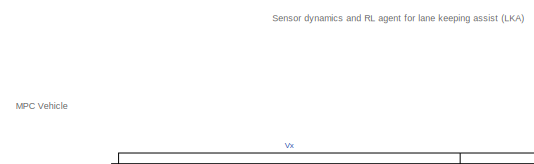
[diagram: root canvas - part 1/2, top left region]
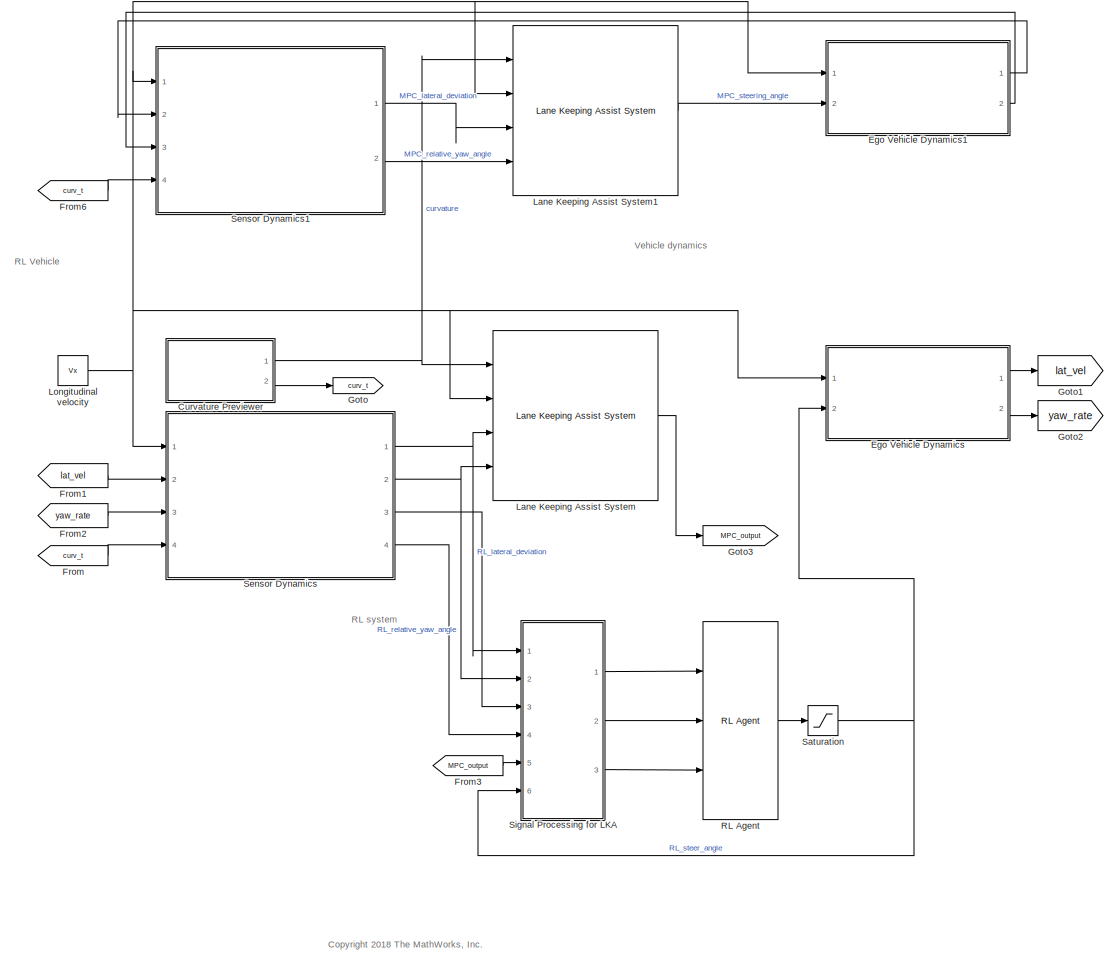
[diagram: root canvas - part 2/2, most of the canvas]
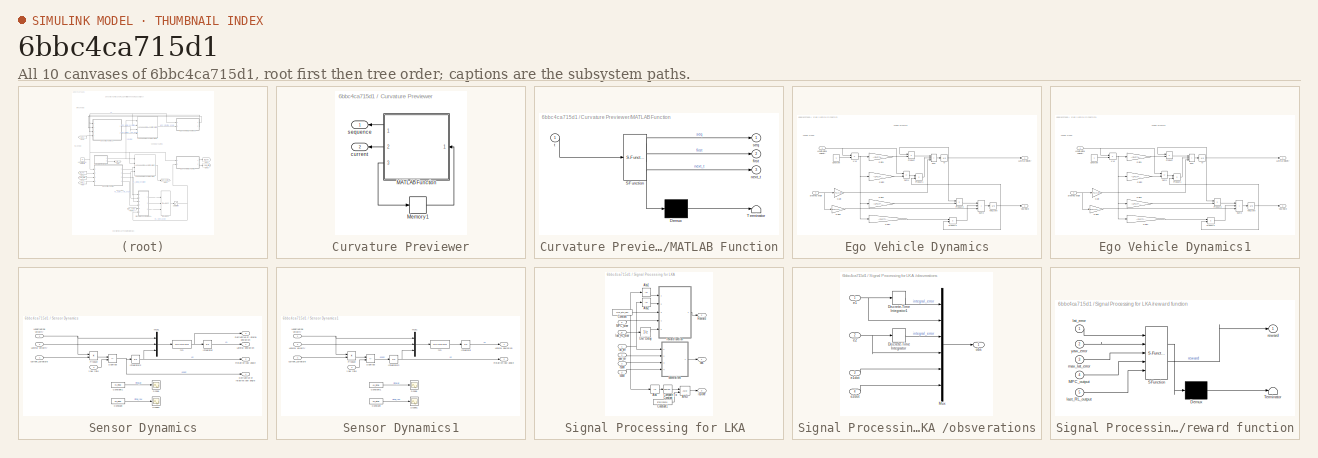
[diagram: thumbnail index - all 10 canvases of the model, root first then tree order]
MODEL slx_6bbc4ca715d1
KIND model
CONFIG AbsTol = auto
CONFIG EnableMultiTasking = off
CONFIG FixedStep = auto
CONFIG MaxStep = auto
CONFIG MinStep = auto
CONFIG RelTol = 1e-3
CONFIG SampleTimeConstraint = Unconstrained
CONFIG SolverName = FixedStepAuto
CONFIG StartTime = 0.0
CONFIG StopTime = T
BLOCK [SubSystem] Curvature Previewer
  Ports = [0, 2]
  RequestExecContextInheritance = off
BLOCK [SubSystem] Curvature Previewer/MATLAB Function
  ErrorFcn = Stateflow.Translate.translate
  PermitHierarchicalResolution = ExplicitOnly
  Ports = [1, 3]
  RequestExecContextInheritance = off
  SFBlockType = MATLAB Function
  TreatAsAtomicUnit = on
BLOCK [Demux] Curvature Previewer/MATLAB Function/ Demux 
  Outputs = 1
  Ports = [1, 1]
BLOCK [S-Function] Curvature Previewer/MATLAB Function/ SFunction 
  EnableBusSupport = on
  FunctionName = sf_sfun
  Parameters = data,steps
  PortCounts = [1 4]
  Ports = [1, 4]
  SFcnIsStateOwnerBlock = off
  SFunctionDeploymentMode = off
  Tag = Stateflow S-Function 2
BLOCK [Terminator] Curvature Previewer/MATLAB Function/ Terminator 
BLOCK [Outport] Curvature Previewer/MATLAB Function/first
  Port = 2
  VectorParamsAs1DForOutWhenUnconnected = off
BLOCK [Outport] Curvature Previewer/MATLAB Function/next_t
  Port = 3
  VectorParamsAs1DForOutWhenUnconnected = off
BLOCK [Outport] Curvature Previewer/MATLAB Function/seq
  VectorParamsAs1DForOutWhenUnconnected = off
BLOCK [Inport] Curvature Previewer/MATLAB Function/t
BLOCK [Memory] Curvature Previewer/Memory1
  InheritSampleTime = on
  LinearizeAsDelay = on
BLOCK [Outport] Curvature Previewer/current
  Port = 2
  VectorParamsAs1DForOutWhenUnconnected = off
BLOCK [Outport] Curvature Previewer/sequence
  VectorParamsAs1DForOutWhenUnconnected = off
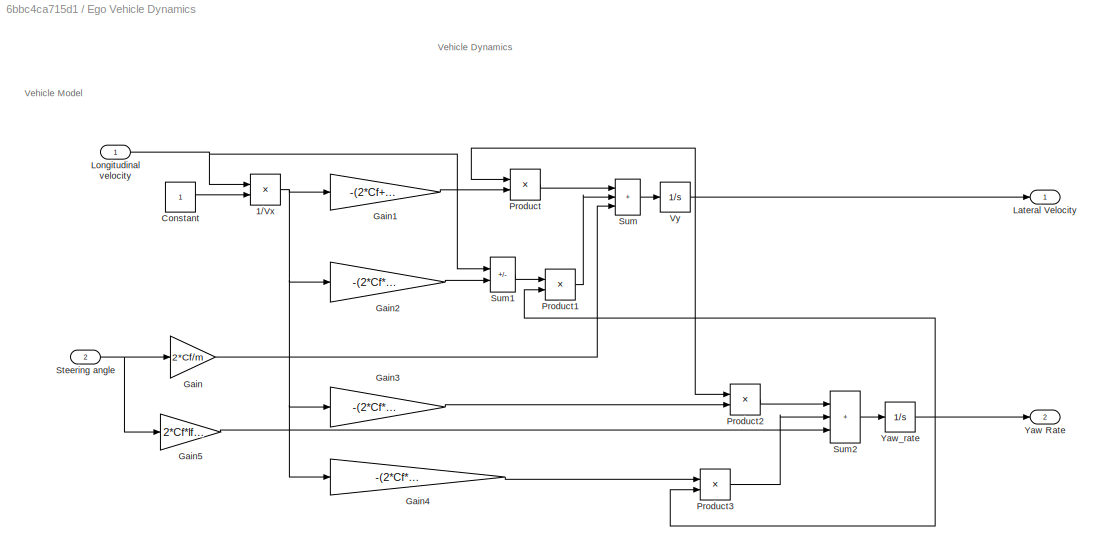
BLOCK [SubSystem] Ego Vehicle Dynamics
  Ports = [2, 2]
  RequestExecContextInheritance = off
BLOCK [Product] Ego Vehicle Dynamics/1//Vx
  Inputs = /*
  Ports = [2, 1]
BLOCK [Constant] Ego Vehicle Dynamics/Constant
BLOCK [Gain] Ego Vehicle Dynamics/Gain
  Gain = 2*Cf/m
BLOCK [Gain] Ego Vehicle Dynamics/Gain1
  Gain = -(2*Cf+2*Cr)/m
BLOCK [Gain] Ego Vehicle Dynamics/Gain2
  Gain = -(2*Cf*lf-2*Cr*lr)/m
BLOCK [Gain] Ego Vehicle Dynamics/Gain3
  Gain = -(2*Cf*lf-2*Cr*lr)/Iz
BLOCK [Gain] Ego Vehicle Dynamics/Gain4
  Gain = -(2*Cf*lf^2+2*Cr*lr^2)/Iz
BLOCK [Gain] Ego Vehicle Dynamics/Gain5
  Gain = 2*Cf*lf/Iz
BLOCK [Outport] Ego Vehicle Dynamics/Lateral Velocity
  VectorParamsAs1DForOutWhenUnconnected = off
BLOCK [Inport] Ego Vehicle Dynamics/Longitudinal velocity
BLOCK [Product] Ego Vehicle Dynamics/Product
  Ports = [2, 1]
BLOCK [Product] Ego Vehicle Dynamics/Product1
  Ports = [2, 1]
BLOCK [Product] Ego Vehicle Dynamics/Product2
  Ports = [2, 1]
BLOCK [Product] Ego Vehicle Dynamics/Product3
  Ports = [2, 1]
BLOCK [Inport] Ego Vehicle Dynamics/Steering angle
  Port = 2
BLOCK [Sum] Ego Vehicle Dynamics/Sum
  IconShape = rectangular
  Inputs = +++
  Ports = [3, 1]
BLOCK [Sum] Ego Vehicle Dynamics/Sum1
  IconShape = rectangular
  Inputs = -+
  Ports = [2, 1]
BLOCK [Sum] Ego Vehicle Dynamics/Sum2
  IconShape = rectangular
  Inputs = +++
  Ports = [3, 1]
BLOCK [Integrator] Ego Vehicle Dynamics/Vy
  Ports = [1, 1]
BLOCK [Outport] Ego Vehicle Dynamics/Yaw Rate
  Port = 2
  VectorParamsAs1DForOutWhenUnconnected = off
BLOCK [Integrator] Ego Vehicle Dynamics/Yaw_rate 
  Ports = [1, 1]
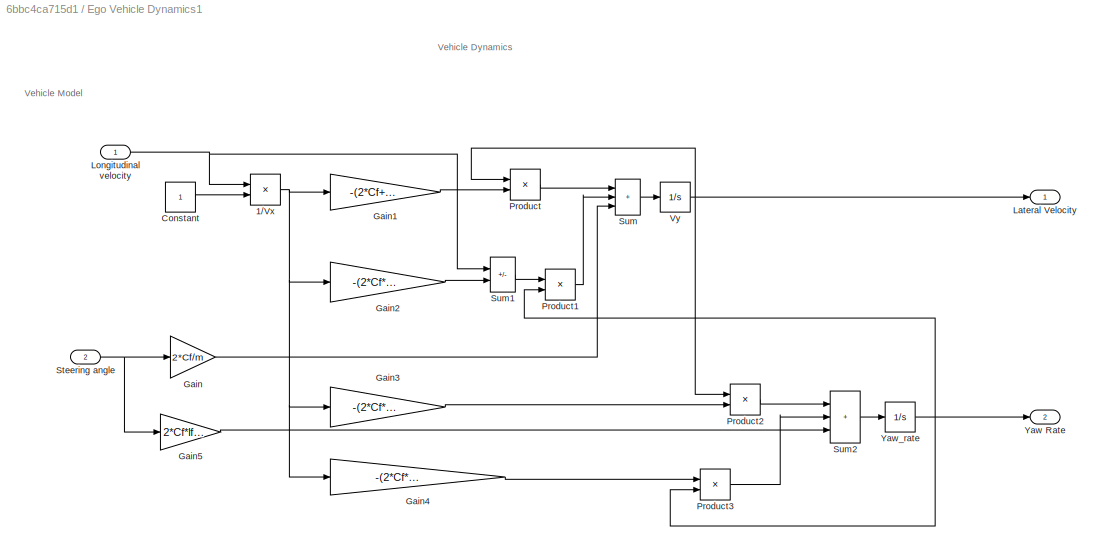
BLOCK [SubSystem] Ego Vehicle Dynamics1
  Ports = [2, 2]
  RequestExecContextInheritance = off
BLOCK [Product] Ego Vehicle Dynamics1/1//Vx
  Inputs = /*
  Ports = [2, 1]
BLOCK [Constant] Ego Vehicle Dynamics1/Constant
BLOCK [Gain] Ego Vehicle Dynamics1/Gain
  Gain = 2*Cf/m
BLOCK [Gain] Ego Vehicle Dynamics1/Gain1
  Gain = -(2*Cf+2*Cr)/m
BLOCK [Gain] Ego Vehicle Dynamics1/Gain2
  Gain = -(2*Cf*lf-2*Cr*lr)/m
BLOCK [Gain] Ego Vehicle Dynamics1/Gain3
  Gain = -(2*Cf*lf-2*Cr*lr)/Iz
BLOCK [Gain] Ego Vehicle Dynamics1/Gain4
  Gain = -(2*Cf*lf^2+2*Cr*lr^2)/Iz
BLOCK [Gain] Ego Vehicle Dynamics1/Gain5
  Gain = 2*Cf*lf/Iz
BLOCK [Outport] Ego Vehicle Dynamics1/Lateral Velocity
  VectorParamsAs1DForOutWhenUnconnected = off
BLOCK [Inport] Ego Vehicle Dynamics1/Longitudinal velocity
BLOCK [Product] Ego Vehicle Dynamics1/Product
  Ports = [2, 1]
BLOCK [Product] Ego Vehicle Dynamics1/Product1
  Ports = [2, 1]
BLOCK [Product] Ego Vehicle Dynamics1/Product2
  Ports = [2, 1]
BLOCK [Product] Ego Vehicle Dynamics1/Product3
  Ports = [2, 1]
BLOCK [Inport] Ego Vehicle Dynamics1/Steering angle
  Port = 2
BLOCK [Sum] Ego Vehicle Dynamics1/Sum
  IconShape = rectangular
  Inputs = +++
  Ports = [3, 1]
BLOCK [Sum] Ego Vehicle Dynamics1/Sum1
  IconShape = rectangular
  Inputs = -+
  Ports = [2, 1]
BLOCK [Sum] Ego Vehicle Dynamics1/Sum2
  IconShape = rectangular
  Inputs = +++
  Ports = [3, 1]
BLOCK [Integrator] Ego Vehicle Dynamics1/Vy
  Ports = [1, 1]
BLOCK [Outport] Ego Vehicle Dynamics1/Yaw Rate
  Port = 2
  VectorParamsAs1DForOutWhenUnconnected = off
BLOCK [Integrator] Ego Vehicle Dynamics1/Yaw_rate 
  Ports = [1, 1]
BLOCK [From] From
  GotoTag = curv_t
BLOCK [From] From1
  GotoTag = lat_vel
BLOCK [From] From2
  GotoTag = yaw_rate
BLOCK [From] From3
  GotoTag = MPC_output
BLOCK [From] From6
  GotoTag = curv_t
BLOCK [Goto] Goto
  GotoTag = curv_t
BLOCK [Goto] Goto1
  GotoTag = lat_vel
BLOCK [Goto] Goto2
  GotoTag = yaw_rate
BLOCK [Goto] Goto3
  GotoTag = MPC_output
BLOCK [Reference] Lane Keeping Assist System  REF=mpcadaslib/Lane Keeping Assist System
  Ports = [4, 1]
  SourceBlock = mpcadaslib/Lane Keeping Assist System
  SourceProductBaseCode = MP
  SourceType = Lane Keeping Assist (LKA) System
BLOCK [Reference] Lane Keeping Assist System1  REF=mpcadaslib/Lane Keeping Assist System
  Ports = [4, 1]
  SourceBlock = mpcadaslib/Lane Keeping Assist System
  SourceProductBaseCode = MP
  SourceType = Lane Keeping Assist (LKA) System
BLOCK [Constant] Longitudinal velocity
  SampleTime = Ts
  Value = Vx
BLOCK [Reference] RL Agent  REF=rllib/RL Agent
  Ports = [3, 1]
  SourceBlock = rllib/RL Agent
  SourceProductBaseCode = RL
  SourceType = RL Agent
BLOCK [Saturate] Saturation
  LowerLimit = u_min
  UpperLimit = u_max
BLOCK [SubSystem] Sensor Dynamics
  Ports = [4, 4]
  RequestExecContextInheritance = off
BLOCK [Constant] Sensor Dynamics/Constant
  Commented = on
  Value = e2_initial
BLOCK [Constant] Sensor Dynamics/Constant1
  Commented = on
  Value = e1_initial
BLOCK [Outport] Sensor Dynamics/Derivative of lateral deviation
  Port = 3
  VectorParamsAs1DForOutWhenUnconnected = off
BLOCK [Outport] Sensor Dynamics/Derivative of relative yaw angle
  Port = 4
  VectorParamsAs1DForOutWhenUnconnected = off
BLOCK [Integrator] Sensor Dynamics/Integrator
  InitialCondition = e1_initial
  Ports = [1, 1]
BLOCK [Integrator] Sensor Dynamics/Integrator2
  InitialCondition = e2_initial
  Ports = [1, 1]
BLOCK [Outport] Sensor Dynamics/Lateral deviation
  VectorParamsAs1DForOutWhenUnconnected = off
BLOCK [Inport] Sensor Dynamics/Lateral velocity
  Port = 2
BLOCK [Inport] Sensor Dynamics/Longitudinal velocity
BLOCK [Mux] Sensor Dynamics/Mux1
  DisplayOption = bar
  Inputs = [1 1 1]
  Ports = [3, 1]
BLOCK [Product] Sensor Dynamics/Product
  Ports = [2, 1]
BLOCK [Outport] Sensor Dynamics/Relative yaw angle
  Port = 2
  VectorParamsAs1DForOutWhenUnconnected = off
BLOCK [Scope] Sensor Dynamics/Scope
  Commented = on
  Floating = off
  NumInputPorts = 1
  Ports = [1]
  ScopeSpecificationString = Simulink.scopes.TimeScopeBlockCfg('CurrentConfiguration', extmgr.ConfigurationSet(extmgr.Configuration('Core','General UI',true),extmgr.Configuration('Core','Source UI',true),extmgr.Configuration('Sources','WiredSimulink',true),extmgr.Configuration('Visuals','Time Domain',true),extmgr.Configuration('Tools','Plot Navigation',true),extmgr.Configuration('Tools','Measurements',true)),'Version','2021a'...<+1ch>
BLOCK [Scope] Sensor Dynamics/Scope1
  Commented = on
  Floating = off
  NumInputPorts = 1
  Ports = [1]
  ScopeSpecificationString = Simulink.scopes.TimeScopeBlockCfg('CurrentConfiguration', extmgr.ConfigurationSet(extmgr.Configuration('Core','General UI',true),extmgr.Configuration('Core','Source UI',true),extmgr.Configuration('Sources','WiredSimulink',true,'DataLoggingVariableName','ScopeData1'),extmgr.Configuration('Visuals','Time Domain',true),extmgr.Configuration('Tools','Plot Navigation',true),extmgr.Configuration('Tools',...<+40ch>
BLOCK [Sum] Sensor Dynamics/Subtract
  IconShape = rectangular
  Inputs = -+
  Ports = [2, 1]
BLOCK [Inport] Sensor Dynamics/Yaw rate
  Port = 3
BLOCK [Inport] Sensor Dynamics/current_curvature
  Port = 4
BLOCK [Fcn] Sensor Dynamics/fcn
  Expr = u(1)*u(3)+u(2)
BLOCK [SubSystem] Sensor Dynamics1
  Ports = [4, 2]
  RequestExecContextInheritance = off
BLOCK [Constant] Sensor Dynamics1/Constant
  Commented = on
  Value = e2_initial
BLOCK [Constant] Sensor Dynamics1/Constant1
  Commented = on
  Value = e1_initial
BLOCK [Integrator] Sensor Dynamics1/Integrator
  InitialCondition = e1_initial
  Ports = [1, 1]
BLOCK [Integrator] Sensor Dynamics1/Integrator2
  InitialCondition = e2_initial
  Ports = [1, 1]
BLOCK [Outport] Sensor Dynamics1/Lateral deviation
  VectorParamsAs1DForOutWhenUnconnected = off
BLOCK [Inport] Sensor Dynamics1/Lateral velocity
  Port = 2
BLOCK [Inport] Sensor Dynamics1/Longitudinal velocity
BLOCK [Mux] Sensor Dynamics1/Mux1
  DisplayOption = bar
  Inputs = [1 1 1]
  Ports = [3, 1]
BLOCK [Product] Sensor Dynamics1/Product
  Ports = [2, 1]
BLOCK [Outport] Sensor Dynamics1/Relative yaw angle
  Port = 2
  VectorParamsAs1DForOutWhenUnconnected = off
BLOCK [Scope] Sensor Dynamics1/Scope
  Commented = on
  Floating = off
  NumInputPorts = 1
  Ports = [1]
  ScopeSpecificationString = Simulink.scopes.TimeScopeBlockCfg('CurrentConfiguration', extmgr.ConfigurationSet(extmgr.Configuration('Core','General UI',true),extmgr.Configuration('Core','Source UI',true),extmgr.Configuration('Sources','WiredSimulink',true),extmgr.Configuration('Visuals','Time Domain',true),extmgr.Configuration('Tools','Plot Navigation',true),extmgr.Configuration('Tools','Measurements',true)),'Version','2021a'...<+1ch>
BLOCK [Scope] Sensor Dynamics1/Scope1
  Commented = on
  Floating = off
  NumInputPorts = 1
  Ports = [1]
  ScopeSpecificationString = Simulink.scopes.TimeScopeBlockCfg('CurrentConfiguration', extmgr.ConfigurationSet(extmgr.Configuration('Core','General UI',true),extmgr.Configuration('Core','Source UI',true),extmgr.Configuration('Sources','WiredSimulink',true,'DataLoggingVariableName','ScopeData1'),extmgr.Configuration('Visuals','Time Domain',true),extmgr.Configuration('Tools','Plot Navigation',true),extmgr.Configuration('Tools',...<+40ch>
BLOCK [Sum] Sensor Dynamics1/Subtract
  IconShape = rectangular
  Inputs = -+
  Ports = [2, 1]
BLOCK [Inport] Sensor Dynamics1/Yaw rate
  Port = 3
BLOCK [Inport] Sensor Dynamics1/current_curvature
  Port = 4
BLOCK [Fcn] Sensor Dynamics1/fcn
  Expr = u(1)*u(3)+u(2)
BLOCK [SubSystem] Signal Processing for LKA 
  Ports = [6, 3]
  RequestExecContextInheritance = off
BLOCK [Logic] Signal Processing for LKA /AND
  AllPortsSameDT = off
  IconShape = distinctive
  OutDataTypeStr = boolean
  Ports = [2, 1]
BLOCK [Abs] Signal Processing for LKA /Abs
  SaturateOnIntegerOverflow = off
BLOCK [Abs] Signal Processing for LKA /Abs1
  SaturateOnIntegerOverflow = off
BLOCK [Abs] Signal Processing for LKA /Abs2
  SaturateOnIntegerOverflow = off
BLOCK [Reference] Signal Processing for LKA /Compare To Constant  REF=simulink/Logic and Bit
Operations/Compare
To Constant
  Ports = [1, 1]
  SourceBlock = simulink/Logic and Bit\nOperations/Compare\nTo Constant
  SourceProductBaseCode = SL
  SourceType = Compare To Constant
BLOCK [Constant] Signal Processing for LKA /Constant
  Value = max_late_dev
BLOCK [Constant] Signal Processing for LKA /Constant1
  Value = isTerminate
BLOCK [Inport] Signal Processing for LKA /MPC_steer
  Port = 5
BLOCK [Outport] Signal Processing for LKA /Reward
  Port = 2
  VectorParamsAs1DForOutWhenUnconnected = off
BLOCK [UnitDelay] Signal Processing for LKA /Unit Delay
  HasFrameUpgradeWarning = on
  SampleTime = -1
BLOCK [Inport] Signal Processing for LKA /e1dot 
  Port = 3
BLOCK [Inport] Signal Processing for LKA /e2dot
  Port = 4
BLOCK [Outport] Signal Processing for LKA /isDone
  Port = 3
  VectorParamsAs1DForOutWhenUnconnected = off
BLOCK [Inport] Signal Processing for LKA /last_RL_steer
  Port = 6
BLOCK [Inport] Signal Processing for LKA /lat_err
BLOCK [Outport] Signal Processing for LKA /obs
  VectorParamsAs1DForOutWhenUnconnected = off
BLOCK [SubSystem] Signal Processing for LKA /obsverations
  Ports = [4, 1]
  RequestExecContextInheritance = off
BLOCK [DiscreteIntegrator] Signal Processing for LKA /obsverations/Discrete-Time Integrator
  ICPrevOutput = DiscIntNeverNeededParam
  ICPrevScaledInput = DiscIntNeverNeededParam
  InitialConditionSetting = Auto
  Ports = [1, 1]
  SampleTime = -1
BLOCK [DiscreteIntegrator] Signal Processing for LKA /obsverations/Discrete-Time Integrator1
  ICPrevOutput = DiscIntNeverNeededParam
  ICPrevScaledInput = DiscIntNeverNeededParam
  InitialConditionSetting = Auto
  Ports = [1, 1]
  SampleTime = -1
BLOCK [Mux] Signal Processing for LKA /obsverations/Mux
  DisplayOption = bar
  Inputs = 6
  Ports = [6, 1]
BLOCK [Inport] Signal Processing for LKA /obsverations/e1
BLOCK [Inport] Signal Processing for LKA /obsverations/e1dot
  Port = 3
BLOCK [Inport] Signal Processing for LKA /obsverations/e2
  Port = 2
BLOCK [Inport] Signal Processing for LKA /obsverations/e2dot
  Port = 4
BLOCK [Outport] Signal Processing for LKA /obsverations/obs
  VectorParamsAs1DForOutWhenUnconnected = off
BLOCK [SubSystem] Signal Processing for LKA /reward function
  ErrorFcn = Stateflow.Translate.translate
  PermitHierarchicalResolution = ExplicitOnly
  Ports = [5, 1]
  RequestExecContextInheritance = off
  SFBlockType = MATLAB Function
  TreatAsAtomicUnit = on
BLOCK [Demux] Signal Processing for LKA /reward function/ Demux 
  Outputs = 1
  Ports = [1, 1]
BLOCK [S-Function] Signal Processing for LKA /reward function/ SFunction 
  EnableBusSupport = on
  FunctionName = sf_sfun
  PortCounts = [5 2]
  Ports = [5, 2]
  SFcnIsStateOwnerBlock = off
  SFunctionDeploymentMode = off
  Tag = Stateflow S-Function 1
BLOCK [Terminator] Signal Processing for LKA /reward function/ Terminator 
BLOCK [Inport] Signal Processing for LKA /reward function/MPC_output
  Port = 4
BLOCK [Inport] Signal Processing for LKA /reward function/last_RL_output
  Port = 5
BLOCK [Inport] Signal Processing for LKA /reward function/lat_error
BLOCK [Inport] Signal Processing for LKA /reward function/max_lat_error
  Port = 3
BLOCK [Outport] Signal Processing for LKA /reward function/reward
BLOCK [Inport] Signal Processing for LKA /reward function/yaw_error
  Port = 2
BLOCK [Inport] Signal Processing for LKA /yaw_err
  Port = 2
ANNOTATION (root): Sensor dynamics and RL agent for lane keeping assist (LKA)
ANNOTATION (root): <copyright redacted>
ANNOTATION (root): MPC Vehicle
ANNOTATION (root): RL Vehicle
ANNOTATION (root): RL system
ANNOTATION (root): Vehicle dynamics
ANNOTATION Ego Vehicle Dynamics: Vehicle Dynamics
ANNOTATION Ego Vehicle Dynamics: Vehicle Model
ANNOTATION Ego Vehicle Dynamics1: Vehicle Dynamics
ANNOTATION Ego Vehicle Dynamics1: Vehicle Model
LINE Curvature Previewer/MATLAB Function:1 -> Curvature Previewer/sequence:1
LINE Curvature Previewer/MATLAB Function:2 -> Curvature Previewer/current:1
LINE Curvature Previewer/MATLAB Function:3 -> Curvature Previewer/Memory1:1
LINE Curvature Previewer/Memory1:1 -> Curvature Previewer/MATLAB Function:1
NET Curvature Previewer:1 -> Lane Keeping Assist System1:1, Lane Keeping Assist System:1
LINE Curvature Previewer:2 -> Goto:1
NET Ego Vehicle Dynamics/1//Vx:1 -> Ego Vehicle Dynamics/Gain1:1, Ego Vehicle Dynamics/Gain2:1, Ego Vehicle Dynamics/Gain3:1, Ego Vehicle Dynamics/Gain4:1
LINE Ego Vehicle Dynamics/Constant:1 -> Ego Vehicle Dynamics/1//Vx:2
LINE Ego Vehicle Dynamics/Gain1:1 -> Ego Vehicle Dynamics/Product:2
LINE Ego Vehicle Dynamics/Gain2:1 -> Ego Vehicle Dynamics/Sum1:2
LINE Ego Vehicle Dynamics/Gain3:1 -> Ego Vehicle Dynamics/Product2:2
LINE Ego Vehicle Dynamics/Gain4:1 -> Ego Vehicle Dynamics/Product3:1
LINE Ego Vehicle Dynamics/Gain5:1 -> Ego Vehicle Dynamics/Sum2:3
LINE Ego Vehicle Dynamics/Gain:1 -> Ego Vehicle Dynamics/Sum:3
NET Ego Vehicle Dynamics/Longitudinal velocity:1 -> Ego Vehicle Dynamics/1//Vx:1, Ego Vehicle Dynamics/Sum1:1
LINE Ego Vehicle Dynamics/Product1:1 -> Ego Vehicle Dynamics/Sum:2
LINE Ego Vehicle Dynamics/Product2:1 -> Ego Vehicle Dynamics/Sum2:1
LINE Ego Vehicle Dynamics/Product3:1 -> Ego Vehicle Dynamics/Sum2:2
LINE Ego Vehicle Dynamics/Product:1 -> Ego Vehicle Dynamics/Sum:1
NET Ego Vehicle Dynamics/Steering angle:1 -> Ego Vehicle Dynamics/Gain5:1, Ego Vehicle Dynamics/Gain:1
LINE Ego Vehicle Dynamics/Sum1:1 -> Ego Vehicle Dynamics/Product1:1
LINE Ego Vehicle Dynamics/Sum2:1 -> Ego Vehicle Dynamics/Yaw_rate :1
LINE Ego Vehicle Dynamics/Sum:1 -> Ego Vehicle Dynamics/Vy:1
NET Ego Vehicle Dynamics/Vy:1 -> Ego Vehicle Dynamics/Lateral Velocity:1, Ego Vehicle Dynamics/Product2:1, Ego Vehicle Dynamics/Product:1
NET Ego Vehicle Dynamics/Yaw_rate :1 -> Ego Vehicle Dynamics/Product1:2, Ego Vehicle Dynamics/Product3:2, Ego Vehicle Dynamics/Yaw Rate:1
NET Ego Vehicle Dynamics1/1//Vx:1 -> Ego Vehicle Dynamics1/Gain1:1, Ego Vehicle Dynamics1/Gain2:1, Ego Vehicle Dynamics1/Gain3:1, Ego Vehicle Dynamics1/Gain4:1
LINE Ego Vehicle Dynamics1/Constant:1 -> Ego Vehicle Dynamics1/1//Vx:2
LINE Ego Vehicle Dynamics1/Gain1:1 -> Ego Vehicle Dynamics1/Product:2
LINE Ego Vehicle Dynamics1/Gain2:1 -> Ego Vehicle Dynamics1/Sum1:2
LINE Ego Vehicle Dynamics1/Gain3:1 -> Ego Vehicle Dynamics1/Product2:2
LINE Ego Vehicle Dynamics1/Gain4:1 -> Ego Vehicle Dynamics1/Product3:1
LINE Ego Vehicle Dynamics1/Gain5:1 -> Ego Vehicle Dynamics1/Sum2:3
LINE Ego Vehicle Dynamics1/Gain:1 -> Ego Vehicle Dynamics1/Sum:3
NET Ego Vehicle Dynamics1/Longitudinal velocity:1 -> Ego Vehicle Dynamics1/1//Vx:1, Ego Vehicle Dynamics1/Sum1:1
LINE Ego Vehicle Dynamics1/Product1:1 -> Ego Vehicle Dynamics1/Sum:2
LINE Ego Vehicle Dynamics1/Product2:1 -> Ego Vehicle Dynamics1/Sum2:1
LINE Ego Vehicle Dynamics1/Product3:1 -> Ego Vehicle Dynamics1/Sum2:2
LINE Ego Vehicle Dynamics1/Product:1 -> Ego Vehicle Dynamics1/Sum:1
NET Ego Vehicle Dynamics1/Steering angle:1 -> Ego Vehicle Dynamics1/Gain5:1, Ego Vehicle Dynamics1/Gain:1
LINE Ego Vehicle Dynamics1/Sum1:1 -> Ego Vehicle Dynamics1/Product1:1
LINE Ego Vehicle Dynamics1/Sum2:1 -> Ego Vehicle Dynamics1/Yaw_rate :1
LINE Ego Vehicle Dynamics1/Sum:1 -> Ego Vehicle Dynamics1/Vy:1
NET Ego Vehicle Dynamics1/Vy:1 -> Ego Vehicle Dynamics1/Lateral Velocity:1, Ego Vehicle Dynamics1/Product2:1, Ego Vehicle Dynamics1/Product:1
NET Ego Vehicle Dynamics1/Yaw_rate :1 -> Ego Vehicle Dynamics1/Product1:2, Ego Vehicle Dynamics1/Product3:2, Ego Vehicle Dynamics1/Yaw Rate:1
LINE Ego Vehicle Dynamics1:1 -> Sensor Dynamics1:2
LINE Ego Vehicle Dynamics1:2 -> Sensor Dynamics1:3
LINE Ego Vehicle Dynamics:1 -> Goto1:1
LINE Ego Vehicle Dynamics:2 -> Goto2:1
LINE From1:1 -> Sensor Dynamics:2
LINE From2:1 -> Sensor Dynamics:3
LINE From3:1 -> Signal Processing for LKA :5
LINE From6:1 -> Sensor Dynamics1:4
LINE From:1 -> Sensor Dynamics:4
LINE Lane Keeping Assist System1:1 -> Ego Vehicle Dynamics1:2
LINE Lane Keeping Assist System:1 -> Goto3:1
NET Longitudinal velocity:1 -> Ego Vehicle Dynamics1:1, Ego Vehicle Dynamics:1, Lane Keeping Assist System1:2, Lane Keeping Assist System:2, Sensor Dynamics1:1, Sensor Dynamics:1
LINE RL Agent:1 -> Saturation:1
NET Saturation:1 -> Ego Vehicle Dynamics:2, Signal Processing for LKA :6
LINE Sensor Dynamics/Constant1:1 -> Sensor Dynamics/Scope:1
LINE Sensor Dynamics/Constant:1 -> Sensor Dynamics/Scope1:1
NET Sensor Dynamics/Integrator2:1 -> Sensor Dynamics/Mux1:3, Sensor Dynamics/Relative yaw angle:1
LINE Sensor Dynamics/Integrator:1 -> Sensor Dynamics/Lateral deviation:1
LINE Sensor Dynamics/Lateral velocity:1 -> Sensor Dynamics/Mux1:2
NET Sensor Dynamics/Longitudinal velocity:1 -> Sensor Dynamics/Mux1:1, Sensor Dynamics/Product:1
LINE Sensor Dynamics/Mux1:1 -> Sensor Dynamics/fcn:1
LINE Sensor Dynamics/Product:1 -> Sensor Dynamics/Subtract:1
NET Sensor Dynamics/Subtract:1 -> Sensor Dynamics/Derivative of relative yaw angle:1, Sensor Dynamics/Integrator2:1
LINE Sensor Dynamics/Yaw rate:1 -> Sensor Dynamics/Subtract:2
LINE Sensor Dynamics/current_curvature:1 -> Sensor Dynamics/Product:2
NET Sensor Dynamics/fcn:1 -> Sensor Dynamics/Derivative of lateral deviation:1, Sensor Dynamics/Integrator:1
LINE Sensor Dynamics1/Constant1:1 -> Sensor Dynamics1/Scope:1
LINE Sensor Dynamics1/Constant:1 -> Sensor Dynamics1/Scope1:1
NET Sensor Dynamics1/Integrator2:1 -> Sensor Dynamics1/Mux1:3, Sensor Dynamics1/Relative yaw angle:1
LINE Sensor Dynamics1/Integrator:1 -> Sensor Dynamics1/Lateral deviation:1
LINE Sensor Dynamics1/Lateral velocity:1 -> Sensor Dynamics1/Mux1:2
NET Sensor Dynamics1/Longitudinal velocity:1 -> Sensor Dynamics1/Mux1:1, Sensor Dynamics1/Product:1
LINE Sensor Dynamics1/Mux1:1 -> Sensor Dynamics1/fcn:1
LINE Sensor Dynamics1/Product:1 -> Sensor Dynamics1/Subtract:1
LINE Sensor Dynamics1/Subtract:1 -> Sensor Dynamics1/Integrator2:1
LINE Sensor Dynamics1/Yaw rate:1 -> Sensor Dynamics1/Subtract:2
LINE Sensor Dynamics1/current_curvature:1 -> Sensor Dynamics1/Product:2
LINE Sensor Dynamics1/fcn:1 -> Sensor Dynamics1/Integrator:1
LINE Sensor Dynamics1:1 -> Lane Keeping Assist System1:3
LINE Sensor Dynamics1:2 -> Lane Keeping Assist System1:4
NET Sensor Dynamics:1 -> Lane Keeping Assist System:3, Signal Processing for LKA :1
NET Sensor Dynamics:2 -> Lane Keeping Assist System:4, Signal Processing for LKA :2
LINE Sensor Dynamics:3 -> Signal Processing for LKA :3
LINE Sensor Dynamics:4 -> Signal Processing for LKA :4
LINE Signal Processing for LKA /AND:1 -> Signal Processing for LKA /isDone:1
LINE Signal Processing for LKA /Abs1:1 -> Signal Processing for LKA /reward function:1
LINE Signal Processing for LKA /Abs2:1 -> Signal Processing for LKA /reward function:2
LINE Signal Processing for LKA /Abs:1 -> Signal Processing for LKA /Compare To Constant:1
LINE Signal Processing for LKA /Compare To Constant:1 -> Signal Processing for LKA /AND:1
LINE Signal Processing for LKA /Constant1:1 -> Signal Processing for LKA /AND:2
LINE Signal Processing for LKA /Constant:1 -> Signal Processing for LKA /reward function:3
LINE Signal Processing for LKA /MPC_steer:1 -> Signal Processing for LKA /reward function:4
LINE Signal Processing for LKA /Unit Delay:1 -> Signal Processing for LKA /reward function:5
LINE Signal Processing for LKA /e1dot :1 -> Signal Processing for LKA /obsverations:3
LINE Signal Processing for LKA /e2dot:1 -> Signal Processing for LKA /obsverations:4
LINE Signal Processing for LKA /last_RL_steer:1 -> Signal Processing for LKA /Unit Delay:1
NET Signal Processing for LKA /lat_err:1 -> Signal Processing for LKA /Abs1:1, Signal Processing for LKA /Abs2:1, Signal Processing for LKA /Abs:1, Signal Processing for LKA /obsverations:1
LINE Signal Processing for LKA /obsverations/Discrete-Time Integrator1:1 -> Signal Processing for LKA /obsverations/Mux:1
LINE Signal Processing for LKA /obsverations/Discrete-Time Integrator:1 -> Signal Processing for LKA /obsverations/Mux:3
LINE Signal Processing for LKA /obsverations/Mux:1 -> Signal Processing for LKA /obsverations/obs:1
NET Signal Processing for LKA /obsverations/e1:1 -> Signal Processing for LKA /obsverations/Discrete-Time Integrator1:1, Signal Processing for LKA /obsverations/Mux:2
LINE Signal Processing for LKA /obsverations/e1dot:1 -> Signal Processing for LKA /obsverations/Mux:5
NET Signal Processing for LKA /obsverations/e2:1 -> Signal Processing for LKA /obsverations/Discrete-Time Integrator:1, Signal Processing for LKA /obsverations/Mux:4
LINE Signal Processing for LKA /obsverations/e2dot:1 -> Signal Processing for LKA /obsverations/Mux:6
LINE Signal Processing for LKA /obsverations:1 -> Signal Processing for LKA /obs:1
LINE Signal Processing for LKA /reward function:1 -> Signal Processing for LKA /Reward:1
LINE Signal Processing for LKA /yaw_err:1 -> Signal Processing for LKA /obsverations:2
LINE Signal Processing for LKA :1 -> RL Agent:1
LINE Signal Processing for LKA :2 -> RL Agent:2
LINE Signal Processing for LKA :3 -> RL Agent:3
note: NET lines group one-source signal fan-out (src -> all destinations, sorted); 1:1 wires keep LINE
CHART Signal Processing for LKA /reward function states=1 transitions=1
  STATE_LABEL 'eML_blk_kernel()'
  STATE_LABEL 'SCRIPT:\nfunction reward = fcn(lat_error, yaw_error, max_lat_error, MPC_output, last_RL_output)\n\npos_reward = 0.6*exp(-(lat_error*3)^2) + 0.4*exp(-(yaw_error*2)^2);\n\nMPC_reward = 0.1*exp(-((last_RL_output - MPC_output)*15)^2);\n\nlast_steer_reward = -0.05*tanh(abs(last_RL_output)*6);\n\nif lat_error >= max_lat_error\n    neg_reward = -tanh((lat_error- max_lat_error)*15);\nelse\n    neg_reward = -0.2*tanh(...<+85ch>'
CHART Curvature Previewer/MATLAB Function states=1 transitions=1
  STATE_LABEL 'eML_blk_kernel()'
  STATE_LABEL "SCRIPT:\nfunction [seq,first,next_t] = fcn(data,steps,t)\n%#codegen\n[seq,first,next_t] = mpcblock_preview('md',data,steps,t);"
CHART  states=0 transitions=0
CHART  states=0 transitions=0
